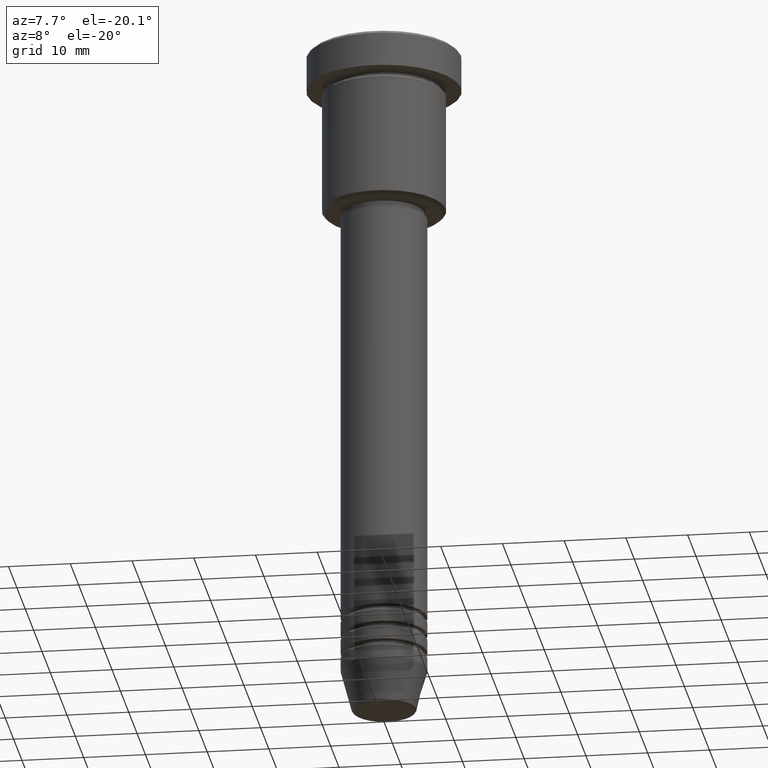
[diagram: clean part render]
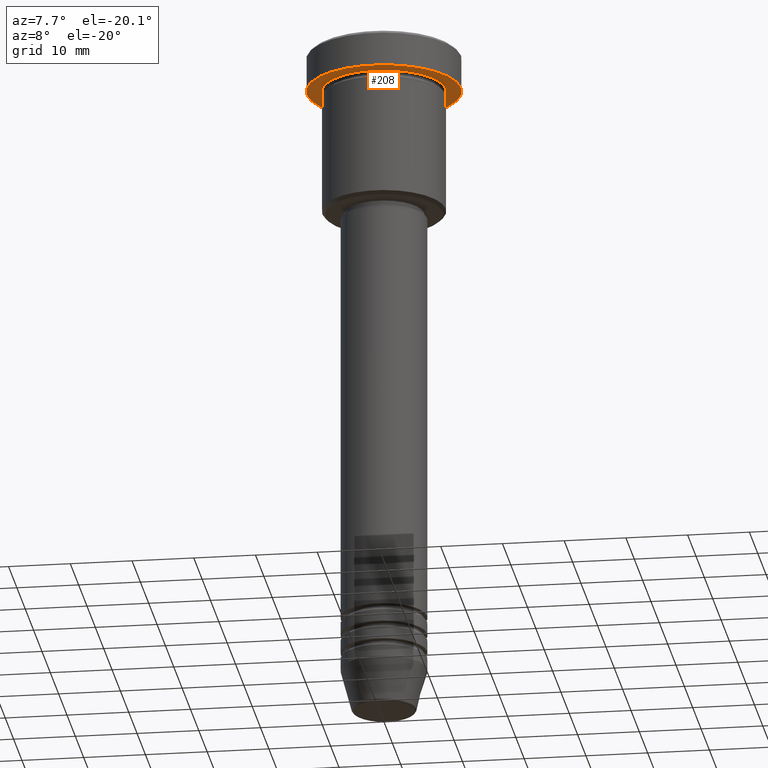
[diagram: same view with one face highlighted and labeled with its STEP entity id]
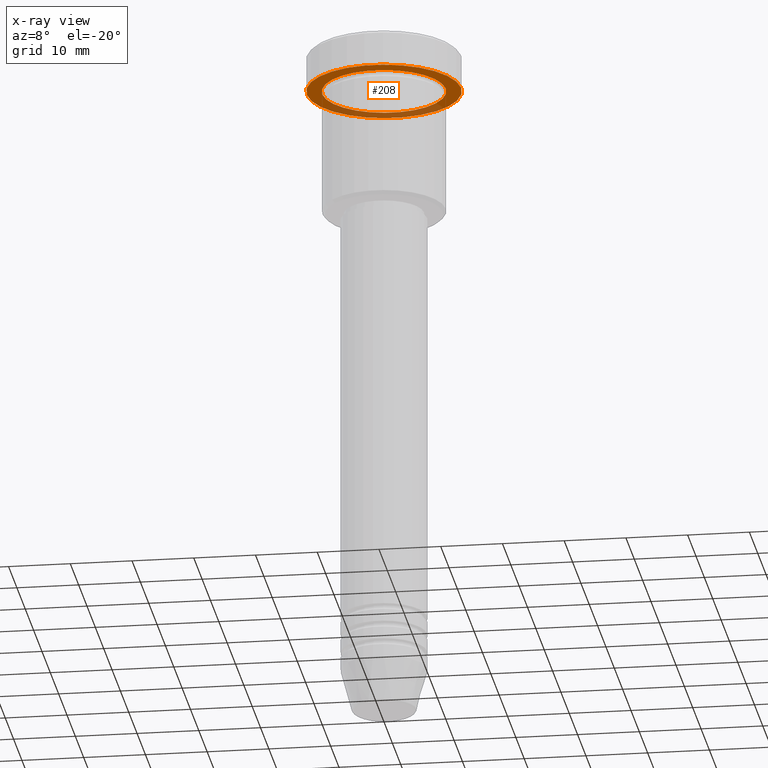
[diagram: x-ray of the same camera — body ghosted, the highlighted face saturated]
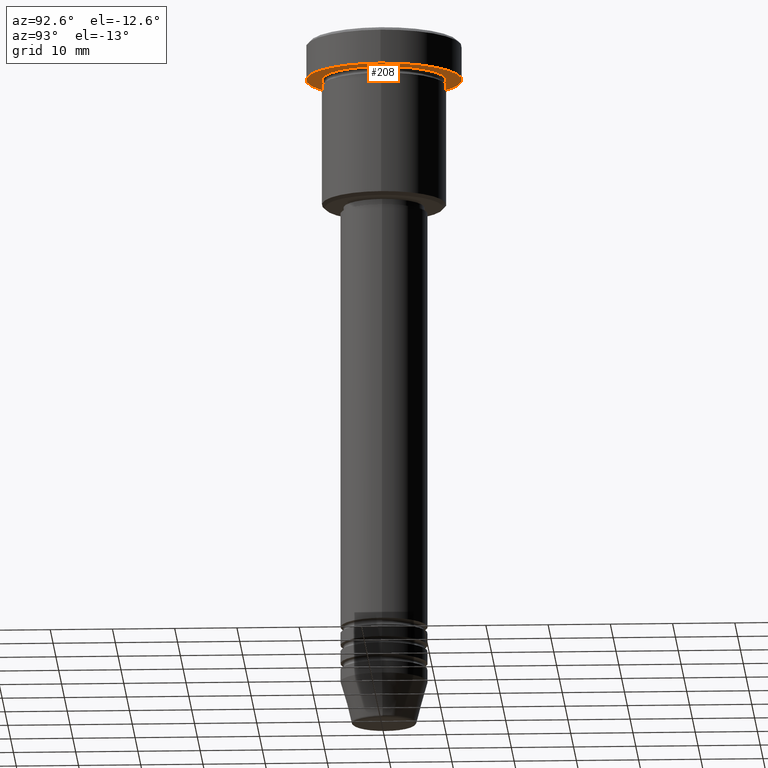
[diagram: same view with one face highlighted and labeled with its STEP entity id]
A machine part, auxiliary view. The second image highlights one B-rep face of the part: STEP entity #208.
The next image is the same camera in x-ray: the body ghosted, the highlighted face saturated — about 30% of this face is hidden behind the body in this view.
A second angle (auxiliary view) of the same face is appended — the face is thin or edge-on in the first view.
In plain terms, the highlighted planar face has unit normal (0, 0, -1).
Its self-contained STEP definition (entity closure, byte-faithful):
#7 = AXIS2_PLACEMENT_3D ( 'NONE', #944, #127, #938 ) ;
#34 = EDGE_CURVE ( 'NONE', #715, #598, #451, .T. ) ;
#37 = EDGE_CURVE ( 'NONE', #1013, #171, #300, .T. ) ;
#119 = DIRECTION ( 'NONE',  ( -0.000000000000000000, -0.000000000000000000, 1.000000000000000000 ) ) ;
#127 = DIRECTION ( 'NONE',  ( -0.000000000000000000, -0.000000000000000000, 1.000000000000000000 ) ) ;
#171 = VERTEX_POINT ( 'NONE', #811 ) ;
#181 = DIRECTION ( 'NONE',  ( 0.000000000000000000, 0.000000000000000000, -1.000000000000000000 ) ) ;
#194 = EDGE_CURVE ( 'NONE', #598, #715, #544, .T. ) ;
#208 = ADVANCED_FACE ( 'NONE', ( #702, #721 ), #1178, .T. ) ;
#209 = CARTESIAN_POINT ( 'NONE',  ( 12.50000000000000000, 0.000000000000000000, -5.999999999999996447 ) ) ;
#236 = DIRECTION ( 'NONE',  ( -0.000000000000000000, -0.000000000000000000, 1.000000000000000000 ) ) ;
#254 = DIRECTION ( 'NONE',  ( -1.000000000000000000, 0.000000000000000000, -0.000000000000000000 ) ) ;
#287 = ORIENTED_EDGE ( 'NONE', *, *, #632, .T. ) ;
#300 = CIRCLE ( 'NONE', #561, 10.00000000000000000 ) ;
#343 = ORIENTED_EDGE ( 'NONE', *, *, #37, .T. ) ;
#349 = CARTESIAN_POINT ( 'NONE',  ( -12.50000000000000000, 1.530808498934191521E-15, -5.999999999999996447 ) ) ;
#350 = ORIENTED_EDGE ( 'NONE', *, *, #194, .F. ) ;
#365 = CIRCLE ( 'NONE', #417, 10.00000000000000000 ) ;
#390 = CARTESIAN_POINT ( 'NONE',  ( -10.00000000000000000, 0.000000000000000000, -5.999999999999996447 ) ) ;
#417 = AXIS2_PLACEMENT_3D ( 'NONE', #968, #236, #422 ) ;
#422 = DIRECTION ( 'NONE',  ( -1.000000000000000000, 0.000000000000000000, 0.000000000000000000 ) ) ;
#451 = CIRCLE ( 'NONE', #7, 12.50000000000000000 ) ;
#487 = DIRECTION ( 'NONE',  ( -1.000000000000000000, 0.000000000000000000, 0.000000000000000000 ) ) ;
#538 = DIRECTION ( 'NONE',  ( 1.000000000000000000, 0.000000000000000000, 0.000000000000000000 ) ) ;
#544 = CIRCLE ( 'NONE', #695, 12.50000000000000000 ) ;
#561 = AXIS2_PLACEMENT_3D ( 'NONE', #1028, #119, #487 ) ;
#598 = VERTEX_POINT ( 'NONE', #349 ) ;
#632 = EDGE_CURVE ( 'NONE', #171, #1013, #365, .T. ) ;
#634 = CARTESIAN_POINT ( 'NONE',  ( 0.000000000000000000, 12.50000000000000000, -5.999999999999996447 ) ) ;
#683 = EDGE_LOOP ( 'NONE', ( #958, #350 ) ) ;
#695 = AXIS2_PLACEMENT_3D ( 'NONE', #999, #1074, #538 ) ;
#702 = FACE_BOUND ( 'NONE', #869, .T. ) ;
#715 = VERTEX_POINT ( 'NONE', #209 ) ;
#721 = FACE_OUTER_BOUND ( 'NONE', #683, .T. ) ;
#790 = AXIS2_PLACEMENT_3D ( 'NONE', #634, #181, #254 ) ;
#811 = CARTESIAN_POINT ( 'NONE',  ( 10.00000000000000000, 1.224646799147353256E-15, -5.999999999999996447 ) ) ;
#869 = EDGE_LOOP ( 'NONE', ( #343, #287 ) ) ;
#938 = DIRECTION ( 'NONE',  ( 1.000000000000000000, 0.000000000000000000, 0.000000000000000000 ) ) ;
#944 = CARTESIAN_POINT ( 'NONE',  ( 0.000000000000000000, 0.000000000000000000, -5.999999999999996447 ) ) ;
#958 = ORIENTED_EDGE ( 'NONE', *, *, #34, .F. ) ;
#968 = CARTESIAN_POINT ( 'NONE',  ( 0.000000000000000000, 0.000000000000000000, -5.999999999999996447 ) ) ;
#999 = CARTESIAN_POINT ( 'NONE',  ( 0.000000000000000000, 0.000000000000000000, -5.999999999999996447 ) ) ;
#1013 = VERTEX_POINT ( 'NONE', #390 ) ;
#1028 = CARTESIAN_POINT ( 'NONE',  ( 0.000000000000000000, 0.000000000000000000, -5.999999999999996447 ) ) ;
#1074 = DIRECTION ( 'NONE',  ( -0.000000000000000000, -0.000000000000000000, 1.000000000000000000 ) ) ;
#1178 = PLANE ( 'NONE',  #790 ) ;